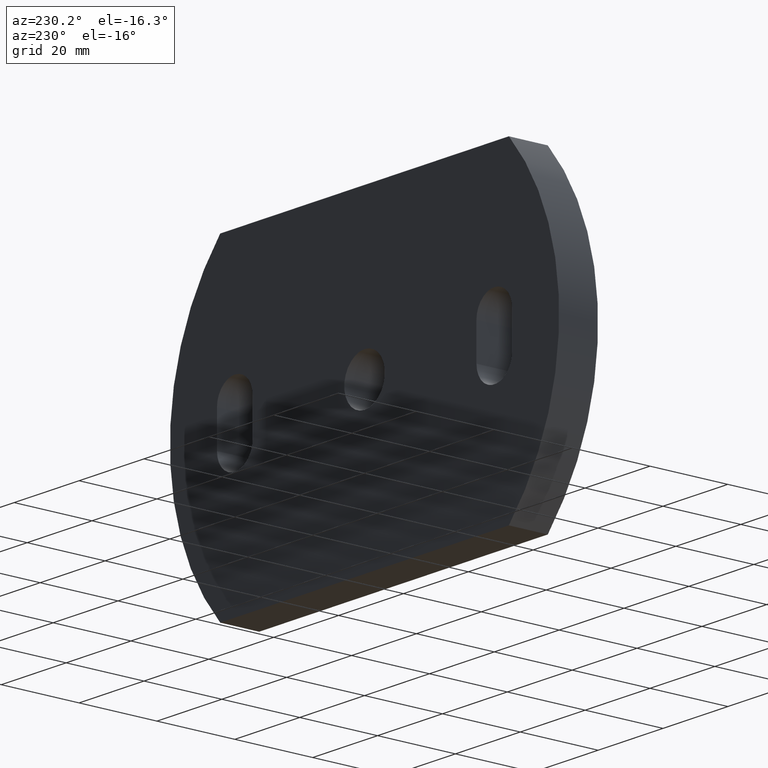
[diagram: clean part render]
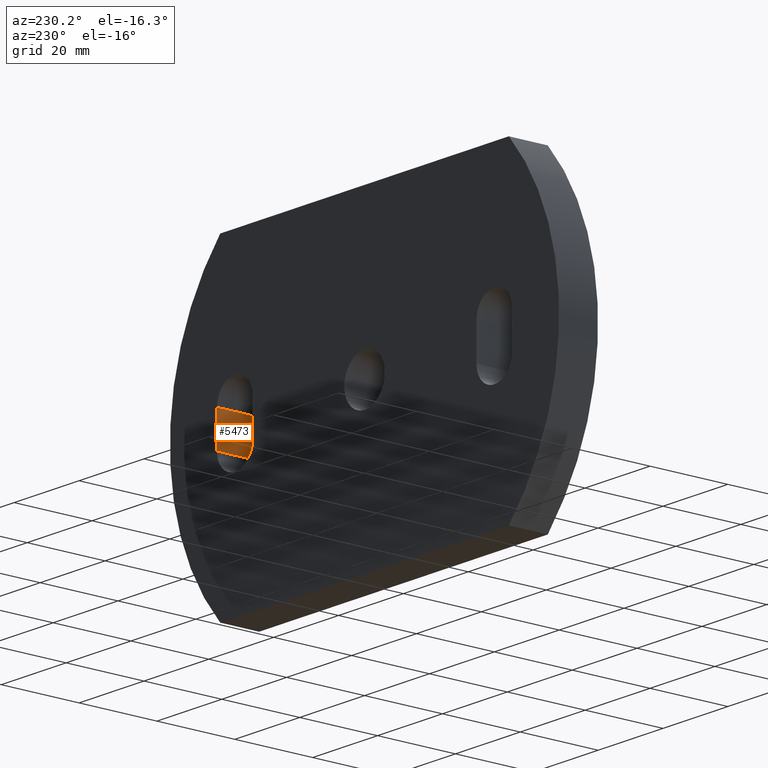
[diagram: same view with one face highlighted and labeled with its STEP entity id]
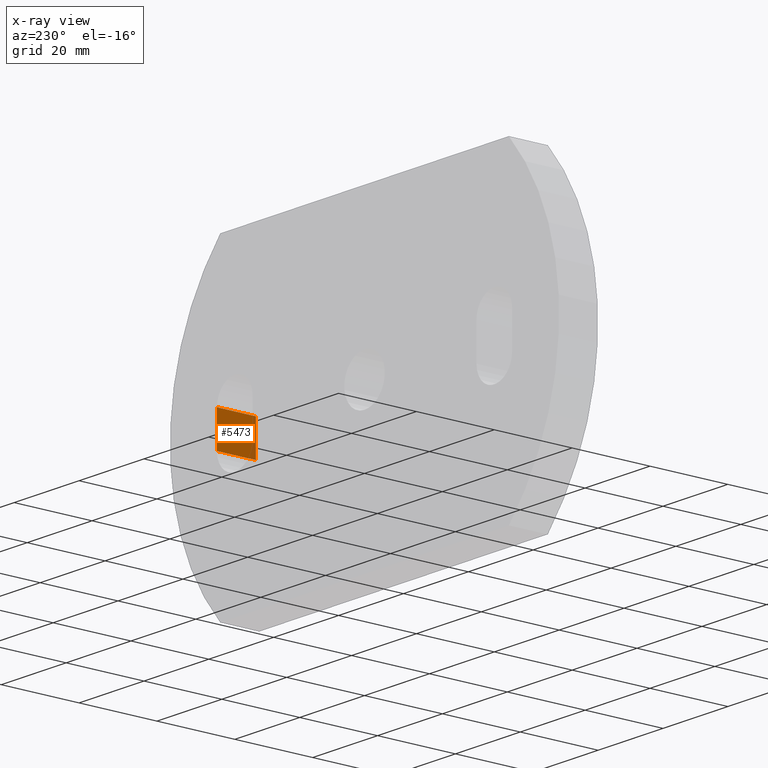
[diagram: x-ray of the same camera — body ghosted, the highlighted face saturated]
A machine part, auxiliary view. The second image highlights one B-rep face of the part: STEP entity #5473.
The next image is the same camera in x-ray: the body ghosted, the highlighted face saturated — about 10% of this face is hidden behind the body in this view.
In plain terms, the highlighted planar face has unit normal (1, 0, -0).
Its self-contained STEP definition (entity closure, byte-faithful):
#387 = LINE ( 'NONE', #2197, #8584 ) ;
#822 = LINE ( 'NONE', #4048, #10544 ) ;
#1404 = DIRECTION ( 'NONE',  ( -0.0000000000000000000, -0.0000000000000000000, -1.000000000000000000 ) ) ;
#1836 = DIRECTION ( 'NONE',  ( -0.0000000000000000000, 0.0000000000000000000, -1.000000000000000000 ) ) ;
#1847 = ORIENTED_EDGE ( 'NONE', *, *, #5170, .F. ) ;
#2040 = LINE ( 'NONE', #9123, #5616 ) ;
#2197 = CARTESIAN_POINT ( 'NONE',  ( 45.50000000000000000, 10.00000000000000000, -4.500000000000005300 ) ) ;
#3193 = VECTOR ( 'NONE', #7903, 1000.000000000000000 ) ;
#3586 = ORIENTED_EDGE ( 'NONE', *, *, #9366, .T. ) ;
#3836 = VERTEX_POINT ( 'NONE', #9258 ) ;
#4048 = CARTESIAN_POINT ( 'NONE',  ( 45.50000000000000000, 0.0000000000000000000, -4.500000000000005300 ) ) ;
#4986 = LINE ( 'NONE', #5373, #3193 ) ;
#5024 = VERTEX_POINT ( 'NONE', #7179 ) ;
#5170 = EDGE_CURVE ( 'NONE', #9265, #5024, #822, .T. ) ;
#5373 = CARTESIAN_POINT ( 'NONE',  ( 45.50000000000000000, 0.0000000000000000000, -4.500000000000005300 ) ) ;
#5473 = ADVANCED_FACE ( 'NONE', ( #9142 ), #8364, .F. ) ;
#5559 = VERTEX_POINT ( 'NONE', #7813 ) ;
#5575 = AXIS2_PLACEMENT_3D ( 'NONE', #7608, #9346, #1836 ) ;
#5616 = VECTOR ( 'NONE', #7388, 1000.000000000000000 ) ;
#6005 = CARTESIAN_POINT ( 'NONE',  ( 45.50000000000000000, 0.0000000000000000000, -4.500000000000005300 ) ) ;
#6372 = DIRECTION ( 'NONE',  ( -0.0000000000000000000, 1.000000000000000000, -0.0000000000000000000 ) ) ;
#6627 = ORIENTED_EDGE ( 'NONE', *, *, #10259, .F. ) ;
#7179 = CARTESIAN_POINT ( 'NONE',  ( 45.50000000000000000, 10.00000000000000000, -4.500000000000005300 ) ) ;
#7388 = DIRECTION ( 'NONE',  ( -0.0000000000000000000, 1.000000000000000000, -0.0000000000000000000 ) ) ;
#7608 = CARTESIAN_POINT ( 'NONE',  ( 45.50000000000000000, 0.0000000000000000000, -4.500000000000005300 ) ) ;
#7813 = CARTESIAN_POINT ( 'NONE',  ( 45.50000000000000000, 10.00000000000000000, 4.500000000000005300 ) ) ;
#7903 = DIRECTION ( 'NONE',  ( -0.0000000000000000000, -0.0000000000000000000, -1.000000000000000000 ) ) ;
#8364 = PLANE ( 'NONE',  #5575 ) ;
#8584 = VECTOR ( 'NONE', #1404, 1000.000000000000000 ) ;
#8716 = ORIENTED_EDGE ( 'NONE', *, *, #9151, .T. ) ;
#9123 = CARTESIAN_POINT ( 'NONE',  ( 45.50000000000000000, 0.0000000000000000000, 4.500000000000005300 ) ) ;
#9142 = FACE_OUTER_BOUND ( 'NONE', #9390, .T. ) ;
#9151 = EDGE_CURVE ( 'NONE', #3836, #5559, #2040, .T. ) ;
#9258 = CARTESIAN_POINT ( 'NONE',  ( 45.50000000000000000, 0.0000000000000000000, 4.500000000000005300 ) ) ;
#9265 = VERTEX_POINT ( 'NONE', #6005 ) ;
#9346 = DIRECTION ( 'NONE',  ( 1.000000000000000000, 0.0000000000000000000, -0.0000000000000000000 ) ) ;
#9366 = EDGE_CURVE ( 'NONE', #5559, #5024, #387, .T. ) ;
#9390 = EDGE_LOOP ( 'NONE', ( #3586, #1847, #6627, #8716 ) ) ;
#10259 = EDGE_CURVE ( 'NONE', #3836, #9265, #4986, .T. ) ;
#10544 = VECTOR ( 'NONE', #6372, 1000.000000000000000 ) ;